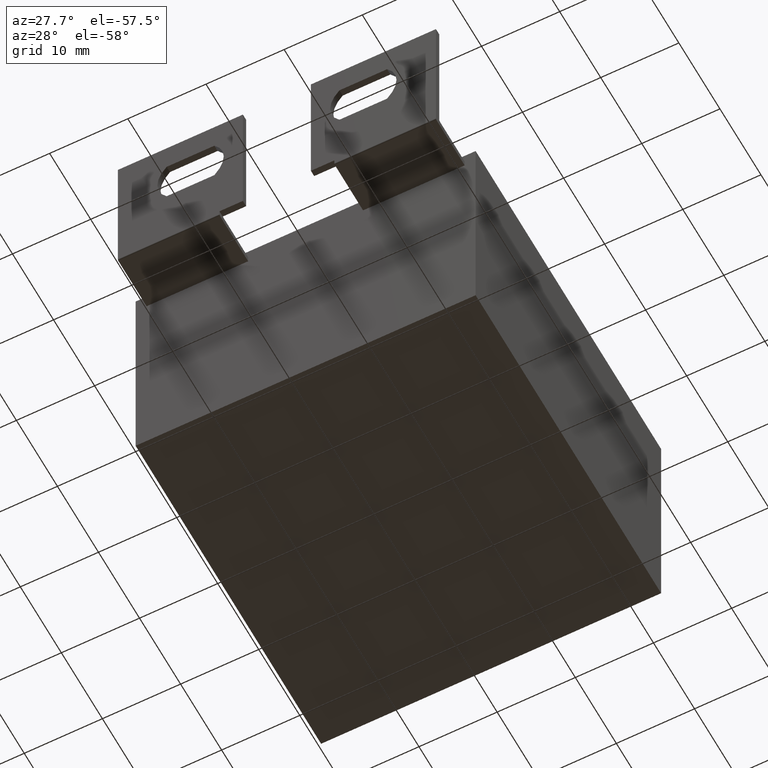
[diagram: clean part render]
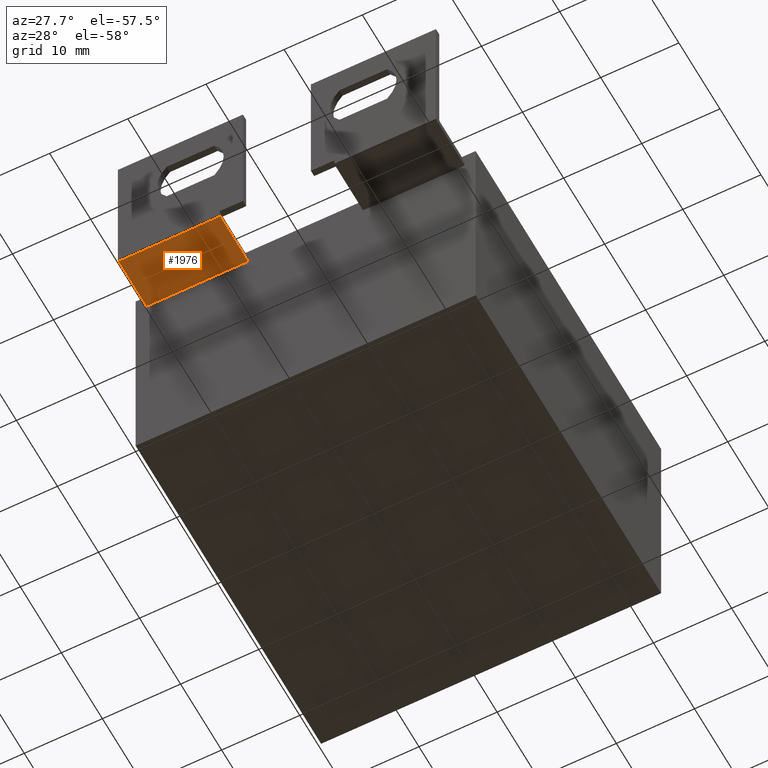
[diagram: same view with one face highlighted and labeled with its STEP entity id]
A machine part, auxiliary view. The second image highlights one B-rep face of the part: STEP entity #1976.
In plain terms, the highlighted planar face has unit normal (0, 0, 1).
Its self-contained STEP definition (entity closure, byte-faithful):
#100 = DIRECTION ( 'NONE',  ( -1.000000000000000000, -0.0000000000000000000, 2.668805347656626700E-016 ) ) ;
#144 = EDGE_CURVE ( 'NONE', #2934, #2026, #2112, .T. ) ;
#166 = AXIS2_PLACEMENT_3D ( 'NONE', #2647, #1018, #3154 ) ;
#366 = LINE ( 'NONE', #537, #3254 ) ;
#537 = CARTESIAN_POINT ( 'NONE',  ( 1.399999999999999900, 0.0000000000000000000, 28.39999999999999900 ) ) ;
#610 = VERTEX_POINT ( 'NONE', #2974 ) ;
#658 = VECTOR ( 'NONE', #1487, 1000.000000000000000 ) ;
#710 = VECTOR ( 'NONE', #3296, 1000.000000000000000 ) ;
#782 = DIRECTION ( 'NONE',  ( 1.000000000000000000, 0.0000000000000000000, -2.668805347656626700E-016 ) ) ;
#883 = FACE_OUTER_BOUND ( 'NONE', #1255, .T. ) ;
#1018 = DIRECTION ( 'NONE',  ( 2.668805347656626700E-016, 0.0000000000000000000, 1.000000000000000000 ) ) ;
#1114 = CARTESIAN_POINT ( 'NONE',  ( 14.40000000000000000, 0.0000000000000000000, 28.39999999999999500 ) ) ;
#1167 = CARTESIAN_POINT ( 'NONE',  ( 14.40000000000000000, -7.000000000000000000, 28.39999999999999500 ) ) ;
#1233 = CARTESIAN_POINT ( 'NONE',  ( 14.40000000000000000, -6.800000000000000700, 28.39999999999999500 ) ) ;
#1255 = EDGE_LOOP ( 'NONE', ( #2564, #3165, #1980, #2588 ) ) ;
#1256 = CARTESIAN_POINT ( 'NONE',  ( 1.399999999999999900, -7.000000000000000000, 28.39999999999999900 ) ) ;
#1295 = PLANE ( 'NONE',  #166 ) ;
#1378 = LINE ( 'NONE', #1256, #658 ) ;
#1410 = VECTOR ( 'NONE', #100, 1000.000000000000000 ) ;
#1487 = DIRECTION ( 'NONE',  ( -0.0000000000000000000, 1.000000000000000000, -0.0000000000000000000 ) ) ;
#1593 = CARTESIAN_POINT ( 'NONE',  ( 1.399999999999999900, -6.800000000000000700, 28.39999999999999900 ) ) ;
#1682 = EDGE_CURVE ( 'NONE', #2934, #2657, #2853, .T. ) ;
#1976 = ADVANCED_FACE ( 'NONE', ( #883 ), #1295, .F. ) ;
#1980 = ORIENTED_EDGE ( 'NONE', *, *, #2947, .T. ) ;
#2026 = VERTEX_POINT ( 'NONE', #1593 ) ;
#2112 = LINE ( 'NONE', #2785, #1410 ) ;
#2562 = EDGE_CURVE ( 'NONE', #610, #2657, #366, .T. ) ;
#2564 = ORIENTED_EDGE ( 'NONE', *, *, #1682, .F. ) ;
#2588 = ORIENTED_EDGE ( 'NONE', *, *, #2562, .T. ) ;
#2647 = CARTESIAN_POINT ( 'NONE',  ( 1.399999999999999900, -7.000000000000000000, 28.39999999999999900 ) ) ;
#2657 = VERTEX_POINT ( 'NONE', #1114 ) ;
#2785 = CARTESIAN_POINT ( 'NONE',  ( 1.399999999999999900, -6.800000000000000700, 28.39999999999999900 ) ) ;
#2853 = LINE ( 'NONE', #1167, #710 ) ;
#2934 = VERTEX_POINT ( 'NONE', #1233 ) ;
#2947 = EDGE_CURVE ( 'NONE', #2026, #610, #1378, .T. ) ;
#2974 = CARTESIAN_POINT ( 'NONE',  ( 1.399999999999999900, 0.0000000000000000000, 28.39999999999999900 ) ) ;
#3154 = DIRECTION ( 'NONE',  ( 1.000000000000000000, 0.0000000000000000000, -2.668805347656626700E-016 ) ) ;
#3165 = ORIENTED_EDGE ( 'NONE', *, *, #144, .T. ) ;
#3254 = VECTOR ( 'NONE', #782, 1000.000000000000000 ) ;
#3296 = DIRECTION ( 'NONE',  ( -0.0000000000000000000, 1.000000000000000000, -0.0000000000000000000 ) ) ;